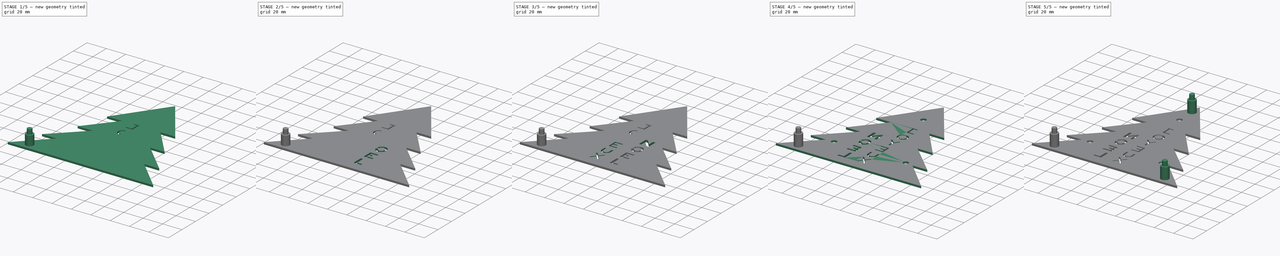
[diagram: build sequence overview — one tinted view per stage of 5, left to right]
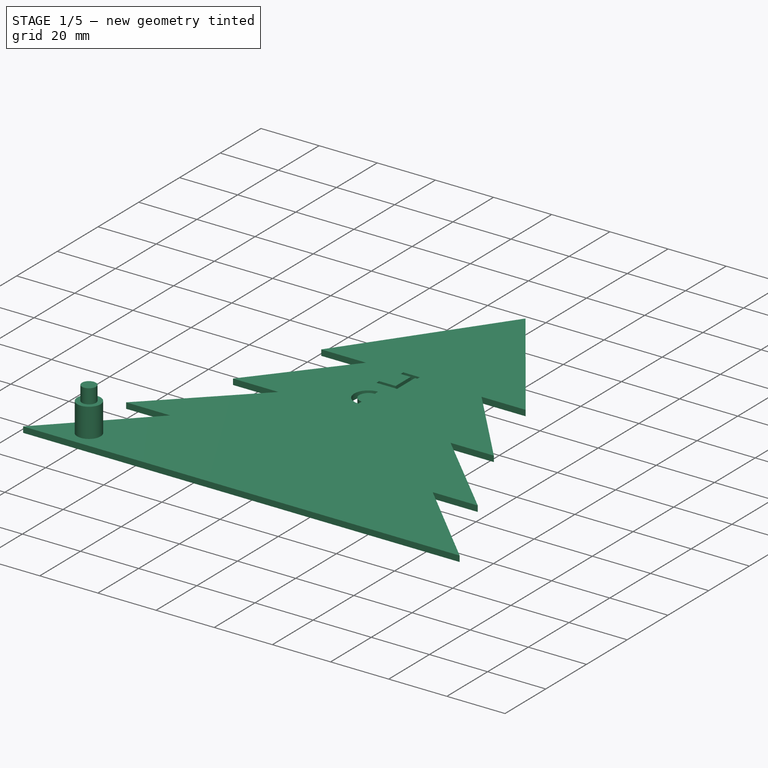
[diagram: stage 1 of 5 — iso view after this stage's code; geometry added in this stage tinted green]
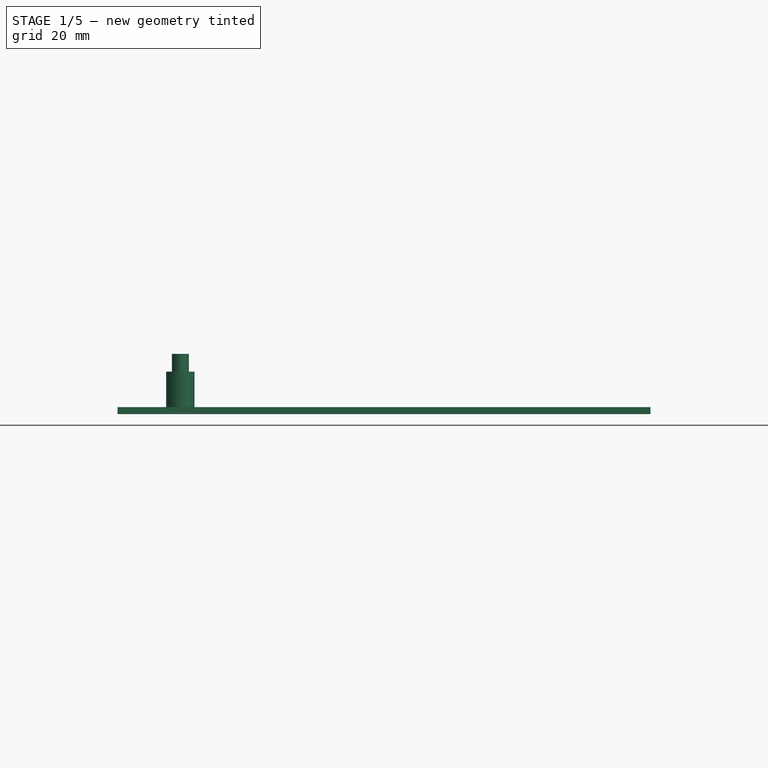
[diagram: stage 1 of 5 — front view after this stage's code; geometry added in this stage tinted green]
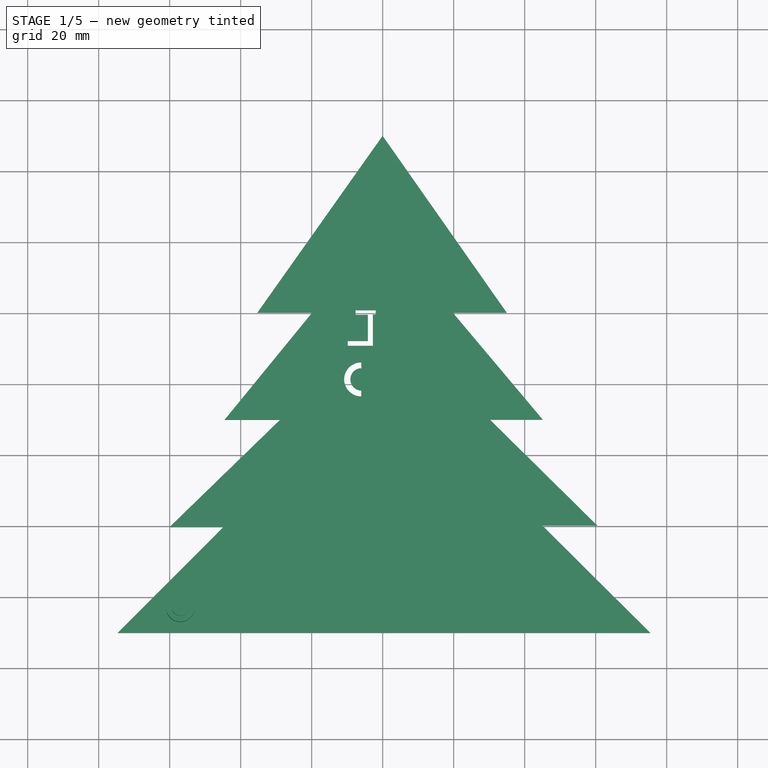
[diagram: stage 1 of 5 — top view after this stage's code; geometry added in this stage tinted green]
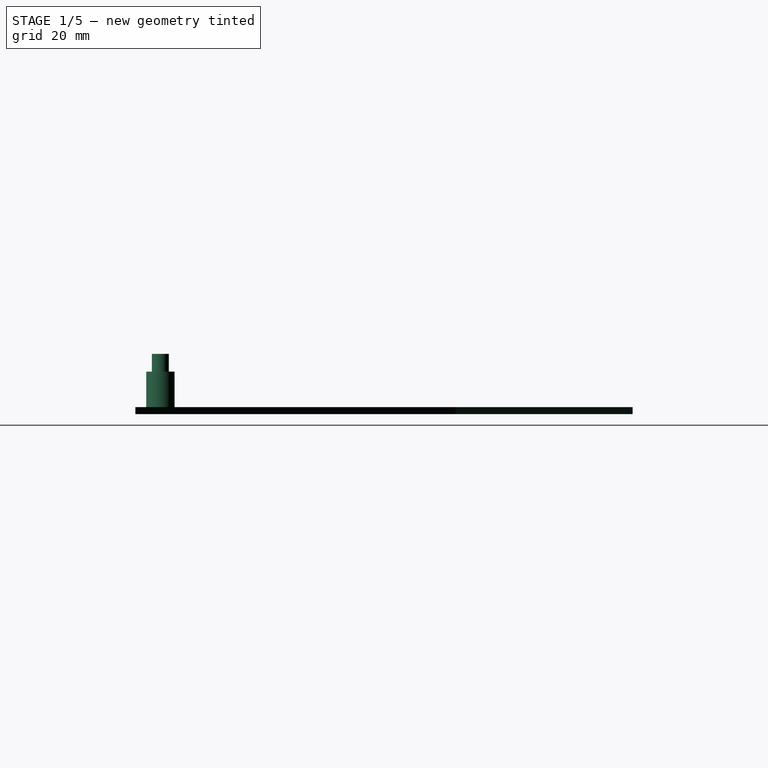
[diagram: stage 1 of 5 — right view after this stage's code; geometry added in this stage tinted green]
FCSTD DOCUMENT  (FreeCAD 0.14R3702 (Git))
Label: piece2I
License: CC-BY 3.0
LicenseURL: http://creativecommons.org/licenses/by/3.0/
objects: Part::Cut×15, Sketcher::SketchObject×13, PartDesign::Pad×13, Part::Cylinder×9, Part::MultiFuse×6
note: 69 computed .brp shape members not serialized (recipe doc carries the construction recipe); baked Part::Feature solids carry a one-line shape summary decoded from their .brp

FEATURE [Sketcher::SketchObject] Sketch
  Placement = pos=(0,0,0) rot=(0,0,1;1.5708rad)
  sketch-geometry (15):
    g0: LineSegment StartX=-130.056 StartY=74.7009 StartZ=0 EndX=-130.056 EndY=-75.4347 EndZ=0
    g1: LineSegment StartX=-130.056 StartY=74.7009 StartZ=0 EndX=-100.276 EndY=44.9717 EndZ=0
    g2: LineSegment StartX=-100.276 StartY=44.9717 StartZ=0 EndX=-100.276 EndY=60.1205 EndZ=0
    g3: LineSegment StartX=-100.276 StartY=60.1205 StartZ=0 EndX=-70.0023 EndY=28.9324 EndZ=0
    g4: LineSegment StartX=-70.0023 StartY=28.9324 StartZ=0 EndX=-70.0023 EndY=44.5611 EndZ=0
    g5: LineSegment StartX=-70.0023 StartY=44.5611 StartZ=0 EndX=-39.8387 EndY=19.9088 EndZ=0
    g6: LineSegment StartX=-39.8387 StartY=19.9088 StartZ=0 EndX=-39.8387 EndY=35.3276 EndZ=0
    g7: LineSegment StartX=-39.8387 StartY=35.3276 StartZ=0 EndX=10.0301 EndY=0.023063 EndZ=0
    g8: LineSegment StartX=10.0301 StartY=0.023063 StartZ=0 EndX=-39.827 EndY=-34.9526 EndZ=0
    g9: LineSegment StartX=-39.827 StartY=-34.9526 StartZ=0 EndX=-39.827 EndY=-19.7763 EndZ=0
    g10: LineSegment StartX=-39.827 StartY=-19.7763 StartZ=0 EndX=-69.9605 EndY=-45.1065 EndZ=0
    g11: LineSegment StartX=-69.9605 StartY=-45.1065 StartZ=0 EndX=-69.9605 EndY=-30.2151 EndZ=0
    g12: LineSegment StartX=-69.9605 StartY=-30.2151 StartZ=0 EndX=-99.7937 EndY=-60.4773 EndZ=0
    g13: LineSegment StartX=-99.7937 StartY=-60.4773 StartZ=0 EndX=-99.7937 EndY=-44.9716 EndZ=0
    g14: LineSegment StartX=-99.7937 StartY=-44.9716 StartZ=0 EndX=-130.056 EndY=-75.4347 EndZ=0
  constraints (22):
    c: Vertical(g0)
    c: Coincident(g1,g0)
    c: Coincident(g1,g2)
    c: Vertical(g2)
    c: Coincident(g2,g3)
    c: Coincident(g3,g4)
    c: Vertical(g4)
    c: Coincident(g4,g5)
    c: Coincident(g5,g6)
    c: Vertical(g6)
    c: Coincident(g6,g7)
    c: Coincident(g7,g8)
    c: Coincident(g8,g9)
    c: Vertical(g9)
    c: Coincident(g9,g10)
    c: Coincident(g10,g11)
    c: Vertical(g11)
    c: Coincident(g11,g12)
    c: Coincident(g12,g13)
    c: Vertical(g13)
    c: Coincident(g13,g14)
    c: Coincident(g14,g0)
FEATURE [PartDesign::Pad] Pad
  Length = 2
  Length2 = 100
  Placement = pos=(0,0,0) rot=(0,0,1;1.5708rad)
  Sketch = -> Sketch
  Type = 0
FEATURE [Sketcher::SketchObject] Sketch001  label="J"
  Placement = pos=(24,-79,0) rot=(0,0,1;0rad)
  sketch-geometry (11):
    g0: LineSegment StartX=-31.0118 StartY=39.8764 StartZ=0 EndX=-25.9439 EndY=39.8764 EndZ=0
    g1: LineSegment StartX=-25.9439 StartY=39.8764 StartZ=0 EndX=-25.9439 EndY=38.6614 EndZ=0
    g2: LineSegment StartX=-25.9439 StartY=38.6614 StartZ=0 EndX=-26.7628 EndY=38.6785 EndZ=0
    g3: LineSegment StartX=-26.7628 StartY=38.6785 StartZ=0 EndX=-26.7628 EndY=29.8655 EndZ=0
    g4: LineSegment StartX=-26.7628 StartY=29.8655 StartZ=0 EndX=-33.8462 EndY=29.8655 EndZ=0
    g5: LineSegment StartX=-33.8462 StartY=29.8655 StartZ=0 EndX=-33.8462 EndY=31.2126 EndZ=0
    g6: LineSegment StartX=-33.8462 StartY=31.2126 StartZ=0 EndX=-28.1891 EndY=31.2126 EndZ=0
    g7: LineSegment StartX=-28.1891 StartY=31.2126 StartZ=0 EndX=-28.1891 EndY=38.6043 EndZ=0
    g8: LineSegment StartX=-28.1891 StartY=38.6043 StartZ=0 EndX=-31.6186 EndY=38.6043 EndZ=0
    g9: LineSegment StartX=-31.6186 StartY=38.6043 StartZ=0 EndX=-31.6186 EndY=39.9285 EndZ=0
    g10: LineSegment StartX=-31.6186 StartY=39.9285 StartZ=0 EndX=-31.0118 EndY=39.8764 EndZ=0
  constraints (17):
    c: Horizontal(g0)
    c: Coincident(g0,g1)
    c: Coincident(g1,g2)
    c: Coincident(g2,g3)
    c: Vertical(g3)
    c: Coincident(g3,g4)
    c: Horizontal(g4)
    c: Coincident(g4,g5)
    c: Coincident(g5,g6)
    c: Horizontal(g6)
    c: Coincident(g6,g7)
    c: Vertical(g7)
    c: Coincident(g7,g8)
    c: Coincident(g8,g9)
    c: Vertical(g9)
    c: Coincident(g9,g10)
    c: Coincident(g10,g0)
FEATURE [PartDesign::Pad] Pad001
  Length = 2
  Length2 = 100
  Placement = pos=(24,-79,0) rot=(0,0,1;0rad)
  Sketch = -> Sketch001
  Type = 0
FEATURE [Sketcher::SketchObject] Sketch002  label="O Gauche"
  Placement = pos=(23,-75,0) rot=(0,0,1;0rad)
  sketch-geometry (4):
    g0: ArcOfCircle CenterX=-29.0572 CenterY=16.4108 CenterZ=0 NormalX=0 NormalY=0 NormalZ=1 Radius=4.79793 StartAngle=1.57271 EndAngle=4.71373
    g1: ArcOfCircle CenterX=-28.9665 CenterY=16.4154 CenterZ=0 NormalX=0 NormalY=0 NormalZ=1 Radius=3.14357 StartAngle=1.57376 EndAngle=4.6887
    g2: LineSegment StartX=-29.0664 StartY=21.2087 StartZ=0 EndX=-28.9758 EndY=19.559 EndZ=0
    g3: LineSegment StartX=-29.041 StartY=13.2727 StartZ=0 EndX=-29.0507 EndY=11.6128 EndZ=0
  constraints (4):
    c: Coincident(g2,g0)
    c: Coincident(g2,g1)
    c: Coincident(g3,g1)
    c: Coincident(g3,g0)
FEATURE [PartDesign::Pad] Pad004
  Length = 2
  Length2 = 100
  Placement = pos=(23,-75,0) rot=(0,0,1;0rad)
  Sketch = -> Sketch002
  Type = 0
FEATURE [Part::Cut] Cut001
  Base = -> Pad
  Tool = -> Pad004
FEATURE [Part::Cut] Cut
  Base = -> Cut001
  Tool = -> Pad001
FEATURE [Part::Cylinder] Cylinder002  label="LedD"
  Angle = 360
  Height = 2
  Placement = pos=(37,-99,0) rot=(0,0,1;0rad)
  Radius = 2.67
FEATURE [Part::Cylinder] Cylinder003  label="Cylindre003"
  Angle = 360
  Height = 12
  Radius = 4
FEATURE [Part::Cylinder] Cylinder008  label="Cylindre008"
  Angle = 360
  Height = 7
  Placement = pos=(0,0,10) rot=(0,0,1;0rad)
  Radius = 2.4
FEATURE [Part::MultiFuse] Fusion  label="FixGauche"
  Placement = pos=(-57,-123,0) rot=(0,0,1;0rad)
  Shapes = -> [Cylinder008,Cylinder003]
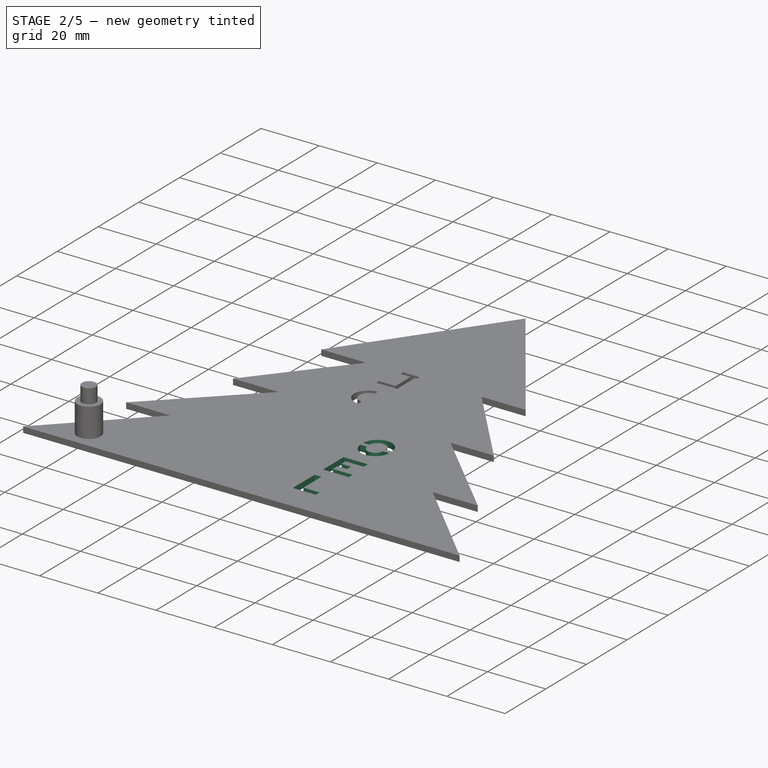
[diagram: stage 2 of 5 — iso view after this stage's code; geometry added in this stage tinted green]
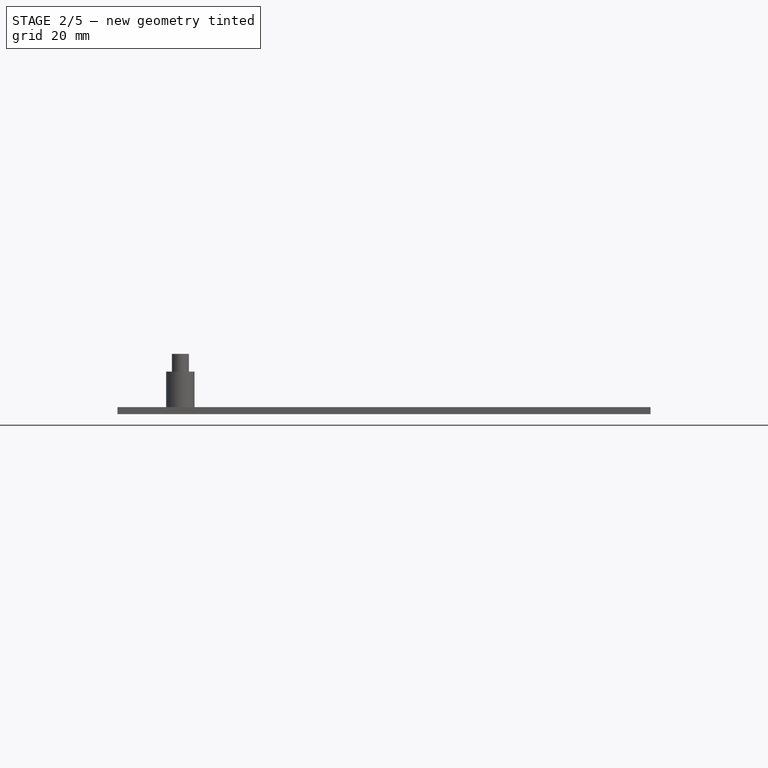
[diagram: stage 2 of 5 — front view after this stage's code; geometry added in this stage tinted green]
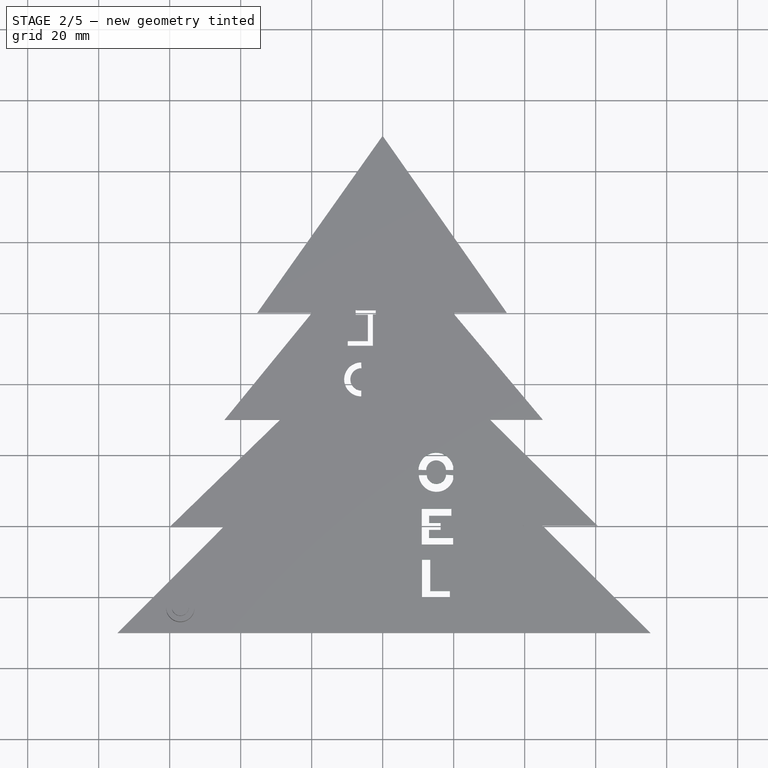
[diagram: stage 2 of 5 — top view after this stage's code; geometry added in this stage tinted green]
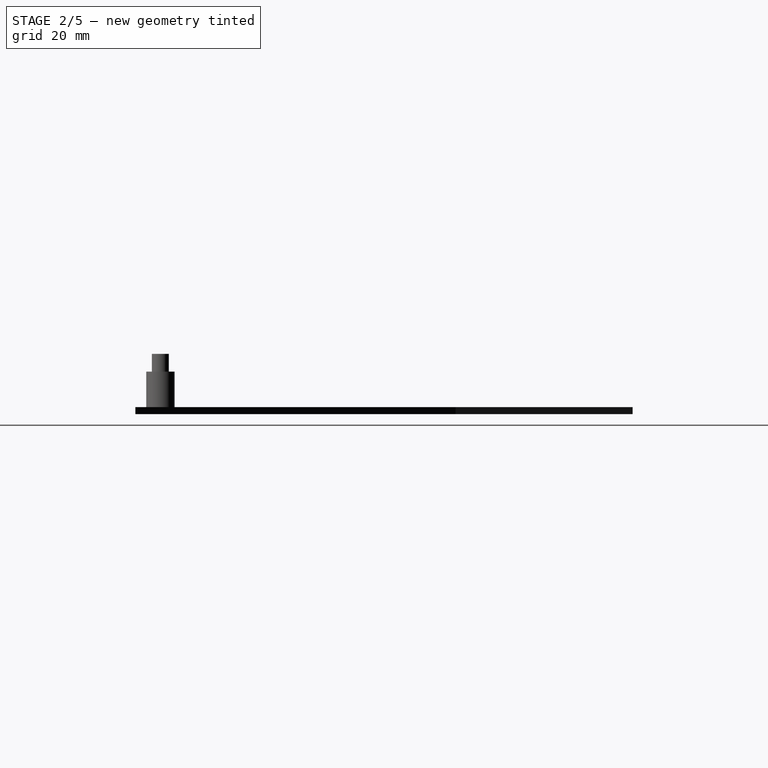
[diagram: stage 2 of 5 — right view after this stage's code; geometry added in this stage tinted green]
FEATURE [Sketcher::SketchObject] Sketch009  label="Ohaut"
  Placement = pos=(-50,-49,0) rot=(0,0,1;0rad)
  sketch-geometry (4):
    g0: ArcOfCircle CenterX=65.0355 CenterY=-35.2037 CenterZ=0 NormalX=0 NormalY=0 NormalZ=1 Radius=4.95588 StartAngle=0.0132282 EndAngle=3.11585
    g1: ArcOfCircle CenterX=65.0355 CenterY=-35.2037 CenterZ=0 NormalX=0 NormalY=0 NormalZ=1 Radius=2.7853 StartAngle=0.029977 EndAngle=3.12437
    g2: LineSegment StartX=60.0813 StartY=-35.0761 StartZ=0 EndX=62.2507 EndY=-35.1557 EndZ=0
    g3: LineSegment StartX=67.8196 StartY=-35.1202 StartZ=0 EndX=69.991 EndY=-35.1382 EndZ=0
  constraints (5):
    c: Coincident(g1,g0)
    c: Coincident(g2,g0)
    c: Coincident(g2,g1)
    c: Coincident(g3,g1)
    c: Coincident(g3,g0)
FEATURE [PartDesign::Pad] Pad011
  Length = 2
  Length2 = 100
  Placement = pos=(-50,-49,0) rot=(0,0,1;0rad)
  Sketch = -> Sketch009
  Type = 0
FEATURE [Sketcher::SketchObject] Sketch010  label="O bas"
  Placement = pos=(-50,-50,0) rot=(0,0,1;0rad)
  sketch-geometry (4):
    g0: ArcOfCircle CenterX=65.1262 CenterY=-35.3138 CenterZ=0 NormalX=0 NormalY=0 NormalZ=1 Radius=4.96317 StartAngle=3.1879 EndAngle=6.23396
    g1: ArcOfCircle CenterX=65.1262 CenterY=-35.3138 CenterZ=0 NormalX=0 NormalY=0 NormalZ=1 Radius=2.72051 StartAngle=3.22615 EndAngle=6.24179
    g2: LineSegment StartX=60.1684 StartY=-35.5436 StartZ=0 EndX=62.4154 EndY=-35.5436 EndZ=0
    g3: LineSegment StartX=67.8444 StartY=-35.4264 StartZ=0 EndX=70.0834 EndY=-35.558 EndZ=0
  constraints (6):
    c: Coincident(g1,g0)
    c: Coincident(g2,g0)
    c: Coincident(g2,g1)
    c: Horizontal(g2)
    c: Coincident(g3,g1)
    c: Coincident(g3,g0)
FEATURE [PartDesign::Pad] Pad013
  Length = 2
  Length2 = 100
  Placement = pos=(-50,-50,0) rot=(0,0,1;0rad)
  Sketch = -> Sketch010
  Type = 0
FEATURE [Sketcher::SketchObject] Sketch011  label="E001"
  Placement = pos=(-49,-45,0) rot=(0,0,1;0rad)
  sketch-geometry (12):
    g0: LineSegment StartX=60.0049 StartY=-50.0404 StartZ=0 EndX=60.0049 EndY=-60.1268 EndZ=0
    g1: LineSegment StartX=60.0049 StartY=-60.1268 StartZ=0 EndX=68.8543 EndY=-60.1268 EndZ=0
    g2: LineSegment StartX=68.8543 StartY=-60.1268 StartZ=0 EndX=68.8543 EndY=-58.2393 EndZ=0
    g3: LineSegment StartX=68.8543 StartY=-58.2393 StartZ=0 EndX=62.037 EndY=-58.2393 EndZ=0
    g4: LineSegment StartX=62.037 StartY=-58.2393 StartZ=0 EndX=62.037 EndY=-55.9898 EndZ=0
    g5: LineSegment StartX=62.037 StartY=-55.9898 StartZ=0 EndX=65.3207 EndY=-55.9898 EndZ=0
    g6: LineSegment StartX=65.3207 StartY=-55.9898 StartZ=0 EndX=65.3207 EndY=-54.0421 EndZ=0
    g7: LineSegment StartX=65.3207 StartY=-54.0421 StartZ=0 EndX=62.0781 EndY=-54.0421 EndZ=0
    g8: LineSegment StartX=62.0781 StartY=-54.0421 StartZ=0 EndX=62.0781 EndY=-52.0099 EndZ=0
    g9: LineSegment StartX=62.0781 StartY=-52.0099 StartZ=0 EndX=68.357 EndY=-52.0099 EndZ=0
    g10: LineSegment StartX=68.357 StartY=-52.0099 StartZ=0 EndX=68.357 EndY=-50.0404 EndZ=0
    g11: LineSegment StartX=68.357 StartY=-50.0404 StartZ=0 EndX=60.0049 EndY=-50.0404 EndZ=0
  constraints (24):
    c: Vertical(g0)
    c: Coincident(g0,g1)
    c: Horizontal(g1)
    c: Coincident(g1,g2)
    c: Vertical(g2)
    c: Coincident(g2,g3)
    c: Horizontal(g3)
    c: Coincident(g3,g4)
    c: Vertical(g4)
    c: Coincident(g4,g5)
    c: Horizontal(g5)
    c: Coincident(g5,g6)
    c: Vertical(g6)
    c: Coincident(g6,g7)
    c: Horizontal(g7)
    c: Coincident(g7,g8)
    c: Vertical(g8)
    c: Coincident(g8,g9)
    c: Horizontal(g9)
    c: Coincident(g9,g10)
    c: Vertical(g10)
    c: Coincident(g10,g11)
    c: Coincident(g11,g0)
    c: Horizontal(g11)
FEATURE [PartDesign::Pad] Pad014
  Length = 2
  Length2 = 100
  Placement = pos=(-49,-45,0) rot=(0,0,1;0rad)
  Sketch = -> Sketch011
  Type = 0
FEATURE [Sketcher::SketchObject] Sketch012  label="L"
  Placement = pos=(-59,-10,0) rot=(0,0,1;0rad)
  sketch-geometry (6):
    g0: LineSegment StartX=70.0775 StartY=-99.3822 StartZ=0 EndX=70.0775 EndY=-110.073 EndZ=0
    g1: LineSegment StartX=70.0775 StartY=-110.073 StartZ=0 EndX=77.9275 EndY=-110.073 EndZ=0
    g2: LineSegment StartX=77.9275 StartY=-110.073 StartZ=0 EndX=77.9275 EndY=-108.204 EndZ=0
    g3: LineSegment StartX=77.9275 StartY=-108.204 StartZ=0 EndX=72.3951 EndY=-108.204 EndZ=0
    g4: LineSegment StartX=72.3951 StartY=-108.204 StartZ=0 EndX=72.3951 EndY=-99.3822 EndZ=0
    g5: LineSegment StartX=72.3951 StartY=-99.3822 StartZ=0 EndX=70.0775 EndY=-99.3822 EndZ=0
  constraints (12):
    c: Vertical(g0)
    c: Coincident(g0,g1)
    c: Horizontal(g1)
    c: Coincident(g1,g2)
    c: Vertical(g2)
    c: Coincident(g2,g3)
    c: Horizontal(g3)
    c: Coincident(g3,g4)
    c: Vertical(g4)
    c: Coincident(g4,g5)
    c: Coincident(g5,g0)
    c: Horizontal(g5)
FEATURE [PartDesign::Pad] Pad015
  Length = 2
  Length2 = 100
  Placement = pos=(-59,-10,0) rot=(0,0,1;0rad)
  Sketch = -> Sketch012
  Type = 0
FEATURE [Part::Cut] Cut002
  Base = -> Cut
  Tool = -> Pad015
FEATURE [Part::Cut] Cut003
  Base = -> Cut002
  Tool = -> Pad014
FEATURE [Part::Cut] Cut004
  Base = -> Cut003
  Tool = -> Pad013
FEATURE [Part::Cut] Cut005
  Base = -> Cut004
  Tool = -> Pad011
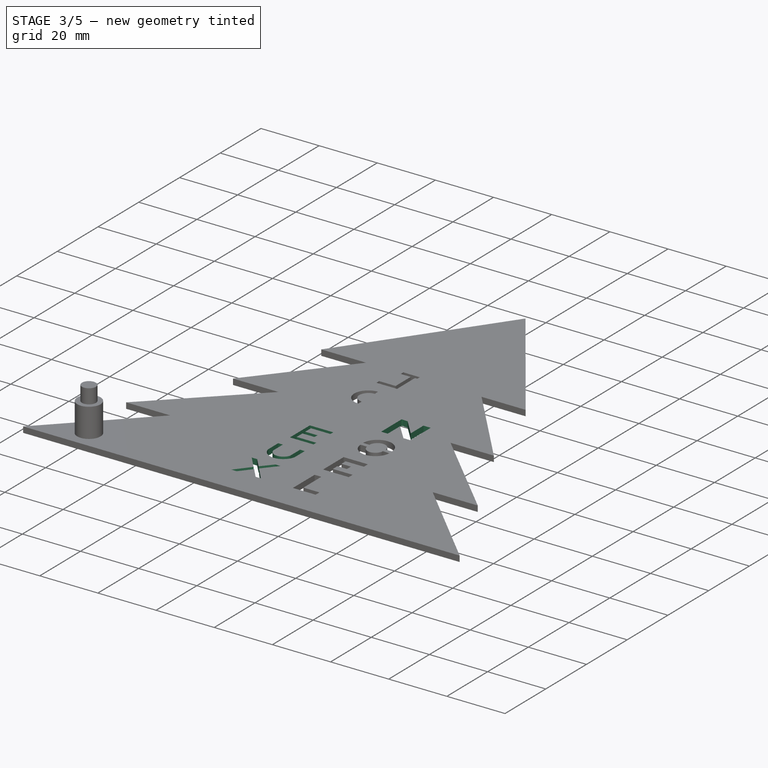
[diagram: stage 3 of 5 — iso view after this stage's code; geometry added in this stage tinted green]
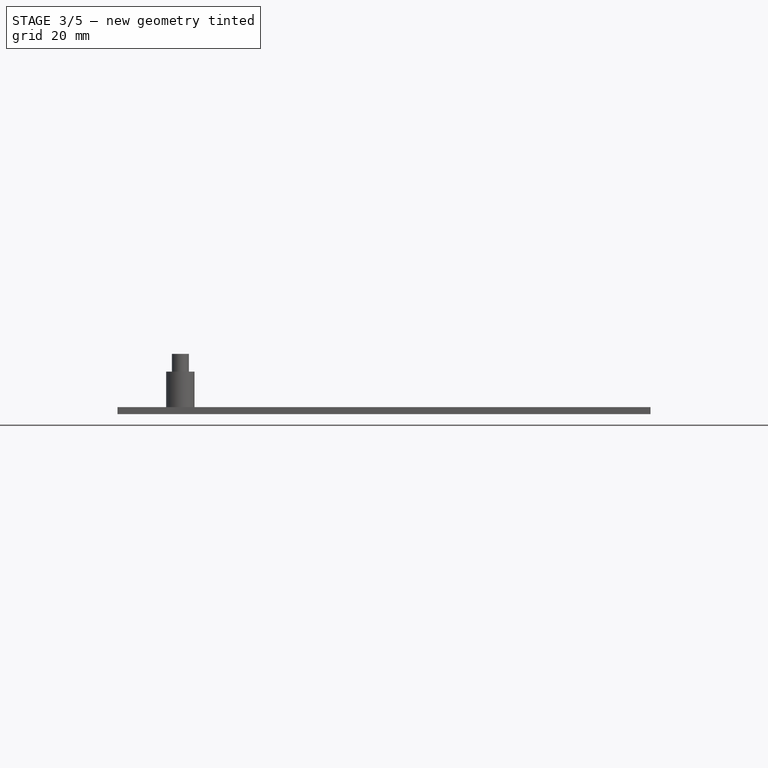
[diagram: stage 3 of 5 — front view after this stage's code; geometry added in this stage tinted green]
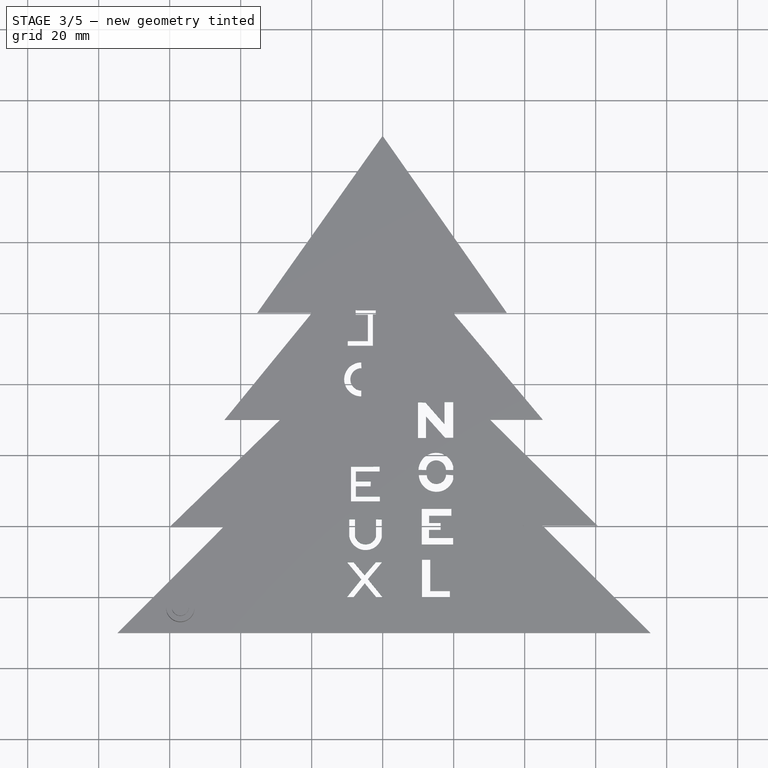
[diagram: stage 3 of 5 — top view after this stage's code; geometry added in this stage tinted green]
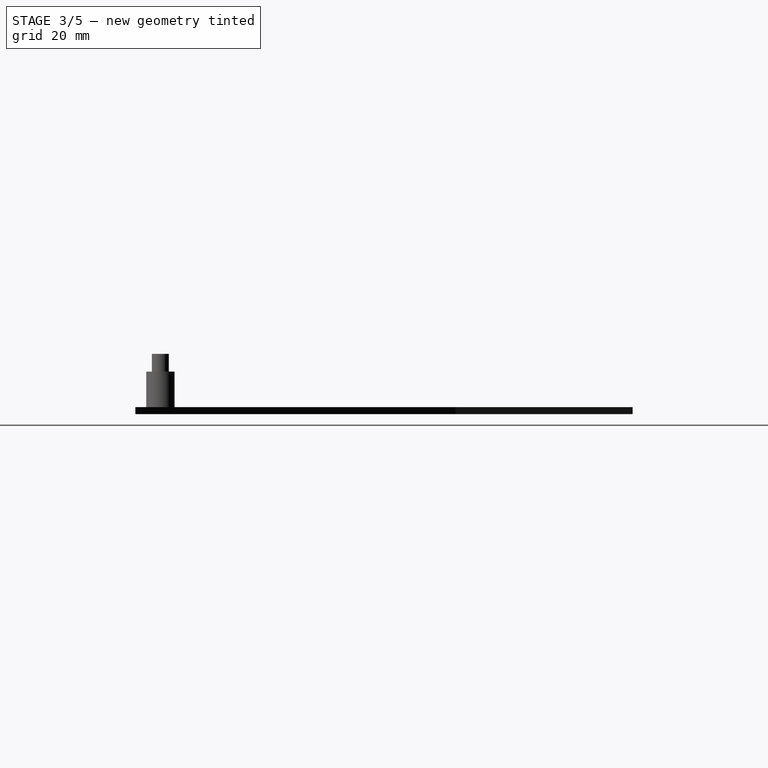
[diagram: stage 3 of 5 — right view after this stage's code; geometry added in this stage tinted green]
FEATURE [Sketcher::SketchObject] Sketch004  label="Y"
  Placement = pos=(50,-28,0) rot=(0,0,1;0rad)
  sketch-geometry (9):
    g0: LineSegment StartX=-60.1723 StartY=-40.0149 StartZ=0 EndX=-55.9452 EndY=-45.2342 EndZ=0
    g1: LineSegment StartX=-55.9452 StartY=-45.2342 StartZ=0 EndX=-55.9452 EndY=-50.0652 EndZ=0
    g2: LineSegment StartX=-55.9452 StartY=-50.0652 StartZ=0 EndX=-54.3923 EndY=-50.0652 EndZ=0
    g3: LineSegment StartX=-54.3923 StartY=-50.0652 StartZ=0 EndX=-54.3923 EndY=-45.2342 EndZ=0
    g4: LineSegment StartX=-54.3923 StartY=-45.2342 StartZ=0 EndX=-50.0358 EndY=-40.0581 EndZ=0
    g5: LineSegment StartX=-50.0358 StartY=-40.0581 StartZ=0 EndX=-51.8043 EndY=-40.0149 EndZ=0
    g6: LineSegment StartX=-51.8043 StartY=-40.0149 StartZ=0 EndX=-55.2119 EndY=-43.7676 EndZ=0
    g7: LineSegment StartX=-55.2119 StartY=-43.7676 StartZ=0 EndX=-58.3607 EndY=-40.0149 EndZ=0
    g8: LineSegment StartX=-58.3607 StartY=-40.0149 StartZ=0 EndX=-60.1723 EndY=-40.0149 EndZ=0
  constraints (12):
    c: Coincident(g0,g1)
    c: Vertical(g1)
    c: Coincident(g1,g2)
    c: Horizontal(g2)
    c: Coincident(g2,g3)
    c: Vertical(g3)
    c: Coincident(g3,g4)
    c: Coincident(g4,g5)
    c: Coincident(g5,g6)
    c: Coincident(g6,g7)
    c: Coincident(g7,g8)
    c: Coincident(g8,g0)
FEATURE [PartDesign::Pad] Pad006
  Length = 2
  Length2 = 100
  Placement = pos=(50,-28,0) rot=(0,0,1;0rad)
  Sketch = -> Sketch004
  Type = 0
FEATURE [Sketcher::SketchObject] Sketch005  label="E"
  Placement = pos=(51,-113,0) rot=(0,0,1;0rad)
  sketch-geometry (12):
    g0: LineSegment StartX=-59.9245 StartY=29.8274 StartZ=0 EndX=-59.9245 EndY=20.0431 EndZ=0
    g1: LineSegment StartX=-59.9245 StartY=20.0431 StartZ=0 EndX=-51.7994 EndY=20.0431 EndZ=0
    g2: LineSegment StartX=-51.7994 StartY=20.0431 StartZ=0 EndX=-51.7781 EndY=21.3882 EndZ=0
    g3: LineSegment StartX=-51.7781 StartY=21.3882 StartZ=0 EndX=-58.5393 EndY=21.3882 EndZ=0
    g4: LineSegment StartX=-58.5393 StartY=21.3882 StartZ=0 EndX=-58.5393 EndY=24.2418 EndZ=0
    g5: LineSegment StartX=-58.5393 StartY=24.2418 StartZ=0 EndX=-54.3922 EndY=24.2418 EndZ=0
    g6: LineSegment StartX=-54.3922 StartY=24.2418 StartZ=0 EndX=-54.3687 EndY=25.6487 EndZ=0
    g7: LineSegment StartX=-54.3687 StartY=25.6487 StartZ=0 EndX=-58.5639 EndY=25.6487 EndZ=0
    g8: LineSegment StartX=-58.5639 StartY=25.6487 StartZ=0 EndX=-58.5639 EndY=28.4448 EndZ=0
    g9: LineSegment StartX=-58.5639 StartY=28.4448 StartZ=0 EndX=-51.8719 EndY=28.4448 EndZ=0
    g10: LineSegment StartX=-51.8719 StartY=28.4448 StartZ=0 EndX=-51.8719 EndY=29.8423 EndZ=0
    g11: LineSegment StartX=-51.8719 StartY=29.8423 StartZ=0 EndX=-59.9245 EndY=29.8274 EndZ=0
  constraints (20):
    c: Vertical(g0)
    c: Coincident(g0,g1)
    c: Horizontal(g1)
    c: Coincident(g1,g2)
    c: Coincident(g2,g3)
    c: Horizontal(g3)
    c: Coincident(g3,g4)
    c: Vertical(g4)
    c: Coincident(g4,g5)
    c: Horizontal(g5)
    c: Coincident(g5,g6)
    c: Coincident(g6,g7)
    c: Coincident(g7,g8)
    c: Vertical(g8)
    c: Coincident(g8,g9)
    c: Horizontal(g9)
    c: Coincident(g9,g10)
    c: Vertical(g10)
    c: Coincident(g10,g11)
    c: Coincident(g11,g0)
FEATURE [PartDesign::Pad] Pad007
  Length = 2
  Length2 = 100
  Placement = pos=(51,-113,0) rot=(0,0,1;0rad)
  Sketch = -> Sketch005
  Type = 0
FEATURE [Sketcher::SketchObject] Sketch006  label="U"
  Placement = pos=(40,-88,0) rot=(0,0,1;0rad)
  sketch-geometry (8):
    g0: ArcOfCircle CenterX=-44.8133 CenterY=-14.0117 CenterZ=0 NormalX=0 NormalY=0 NormalZ=1 Radius=4.67356 StartAngle=3.32783 EndAngle=6.05146
    g1: ArcOfCircle CenterX=-44.8133 CenterY=-14.0117 CenterZ=0 NormalX=0 NormalY=0 NormalZ=1 Radius=3.06212 StartAngle=3.36434 EndAngle=5.99512
    g2: LineSegment StartX=-41.8774 StartY=-14.8817 StartZ=0 EndX=-41.8774 EndY=-10.0146 EndZ=0
    g3: LineSegment StartX=-41.8774 StartY=-10.0146 StartZ=0 EndX=-40.2647 EndY=-10.0394 EndZ=0
    g4: LineSegment StartX=-40.2647 StartY=-10.0394 StartZ=0 EndX=-40.2647 EndY=-15.085 EndZ=0
    g5: LineSegment StartX=-49.406 StartY=-14.8771 StartZ=0 EndX=-49.406 EndY=-10.0146 EndZ=0
    g6: LineSegment StartX=-49.406 StartY=-10.0146 StartZ=0 EndX=-47.7998 EndY=-10.0146 EndZ=0
    g7: LineSegment StartX=-47.7998 StartY=-10.0146 StartZ=0 EndX=-47.7998 EndY=-14.6882 EndZ=0
  constraints (14):
    c: Coincident(g1,g0)
    c: Coincident(g2,g1)
    c: Vertical(g2)
    c: Coincident(g2,g3)
    c: Coincident(g3,g4)
    c: Coincident(g4,g0)
    c: Vertical(g4)
    c: Coincident(g5,g0)
    c: Vertical(g5)
    c: Coincident(g5,g6)
    c: Horizontal(g6)
    c: Coincident(g6,g7)
    c: Coincident(g7,g1)
    c: Vertical(g7)
FEATURE [PartDesign::Pad] Pad008
  Length = 2
  Length2 = 100
  Placement = pos=(40,-88,0) rot=(0,0,1;0rad)
  Sketch = -> Sketch006
  Type = 0
FEATURE [Sketcher::SketchObject] Sketch007  label="X"
  Placement = pos=(40,-100,0) rot=(0,0,1;0rad)
  sketch-geometry (12):
    g0: LineSegment StartX=-50.0444 StartY=-10.1112 StartZ=0 EndX=-48.1842 EndY=-10.1112 EndZ=0
    g1: LineSegment StartX=-48.1842 StartY=-10.1112 StartZ=0 EndX=-45.1038 EndY=-13.7691 EndZ=0
    g2: LineSegment StartX=-45.1038 StartY=-13.7691 StartZ=0 EndX=-41.9134 EndY=-10.0837 EndZ=0
    g3: LineSegment StartX=-41.9134 StartY=-10.0837 StartZ=0 EndX=-40.1452 EndY=-10.0837 EndZ=0
    g4: LineSegment StartX=-40.1452 StartY=-10.0837 StartZ=0 EndX=-44.1687 EndY=-14.8693 EndZ=0
    g5: LineSegment StartX=-44.1687 StartY=-14.8693 StartZ=0 EndX=-39.9891 EndY=-20.0125 EndZ=0
    g6: LineSegment StartX=-39.9891 StartY=-20.0125 StartZ=0 EndX=-41.7759 EndY=-20.0125 EndZ=0
    g7: LineSegment StartX=-41.7759 StartY=-20.0125 StartZ=0 EndX=-45.0488 EndY=-16.0519 EndZ=0
    g8: LineSegment StartX=-45.0488 StartY=-16.0519 StartZ=0 EndX=-48.2667 EndY=-20.0125 EndZ=0
    g9: LineSegment StartX=-48.2667 StartY=-20.0125 StartZ=0 EndX=-50.137 EndY=-20.0125 EndZ=0
    g10: LineSegment StartX=-50.137 StartY=-20.0125 StartZ=0 EndX=-46.0389 EndY=-14.9243 EndZ=0
    g11: LineSegment StartX=-46.0389 StartY=-14.9243 StartZ=0 EndX=-50.0444 EndY=-10.1112 EndZ=0
  constraints (16):
    c: Horizontal(g0)
    c: Coincident(g0,g1)
    c: Coincident(g1,g2)
    c: Coincident(g2,g3)
    c: Horizontal(g3)
    c: Coincident(g3,g4)
    c: Coincident(g4,g5)
    c: Coincident(g5,g6)
    c: Horizontal(g6)
    c: Coincident(g6,g7)
    c: Coincident(g7,g8)
    c: Coincident(g8,g9)
    c: Horizontal(g9)
    c: Coincident(g9,g10)
    c: Coincident(g10,g11)
    c: Coincident(g11,g0)
FEATURE [PartDesign::Pad] Pad009
  Length = 2
  Length2 = 100
  Placement = pos=(40,-100,0) rot=(0,0,1;0rad)
  Sketch = -> Sketch007
  Type = 0
FEATURE [Sketcher::SketchObject] Sketch008  label="N"
  Placement = pos=(-50,-55,0) rot=(0,0,1;0rad)
  sketch-geometry (11):
    g0: LineSegment StartX=59.945 StartY=-10.0817 StartZ=0 EndX=59.945 EndY=-20.0964 EndZ=0
    g1: LineSegment StartX=59.945 StartY=-20.0964 StartZ=0 EndX=62.2158 EndY=-20.0964 EndZ=0
    g2: LineSegment StartX=62.2158 StartY=-20.0964 StartZ=0 EndX=62.2158 EndY=-14.041 EndZ=0
    g3: LineSegment StartX=62.2158 StartY=-14.041 StartZ=0 EndX=67.5725 EndY=-20.0382 EndZ=0
    g4: LineSegment StartX=67.5725 StartY=-20.0382 StartZ=0 EndX=69.9015 EndY=-20.0382 EndZ=0
    g5: LineSegment StartX=69.9015 StartY=-20.0382 StartZ=0 EndX=69.9015 EndY=-9.96525 EndZ=0
    g6: LineSegment StartX=69.9015 StartY=-9.96525 StartZ=0 EndX=67.3978 EndY=-9.96525 EndZ=0
    g7: LineSegment StartX=67.3978 StartY=-9.96525 StartZ=0 EndX=67.3978 EndY=-16.1953 EndZ=0
    g8: LineSegment StartX=67.3978 StartY=-16.1953 StartZ=0 EndX=62.0993 EndY=-10.1399 EndZ=0
    g9: LineSegment StartX=62.0993 StartY=-10.1399 StartZ=0 EndX=60.2943 EndY=-10.0235 EndZ=0
    g10: LineSegment StartX=60.2943 StartY=-10.0235 StartZ=0 EndX=59.945 EndY=-10.0817 EndZ=0
  constraints (18):
    c: Vertical(g0)
    c: Coincident(g0,g1)
    c: Horizontal(g1)
    c: Coincident(g1,g2)
    c: Vertical(g2)
    c: Coincident(g2,g3)
    c: Coincident(g3,g4)
    c: Horizontal(g4)
    c: Coincident(g4,g5)
    c: Vertical(g5)
    c: Coincident(g5,g6)
    c: Horizontal(g6)
    c: Coincident(g6,g7)
    c: Vertical(g7)
    c: Coincident(g7,g8)
    c: Coincident(g8,g9)
    c: Coincident(g9,g10)
    c: Coincident(g10,g0)
FEATURE [PartDesign::Pad] Pad010
  Length = 2
  Length2 = 100
  Placement = pos=(-50,-55,0) rot=(0,0,1;0rad)
  Sketch = -> Sketch008
  Type = 0
FEATURE [Part::Cut] Cut006
  Base = -> Cut005
  Tool = -> Pad010
FEATURE [Part::Cut] Cut007
  Base = -> Cut006
  Tool = -> Pad009
FEATURE [Part::Cut] Cut008
  Base = -> Cut007
  Tool = -> Pad008
FEATURE [Part::Cut] Cut009
  Base = -> Cut008
  Tool = -> Pad007
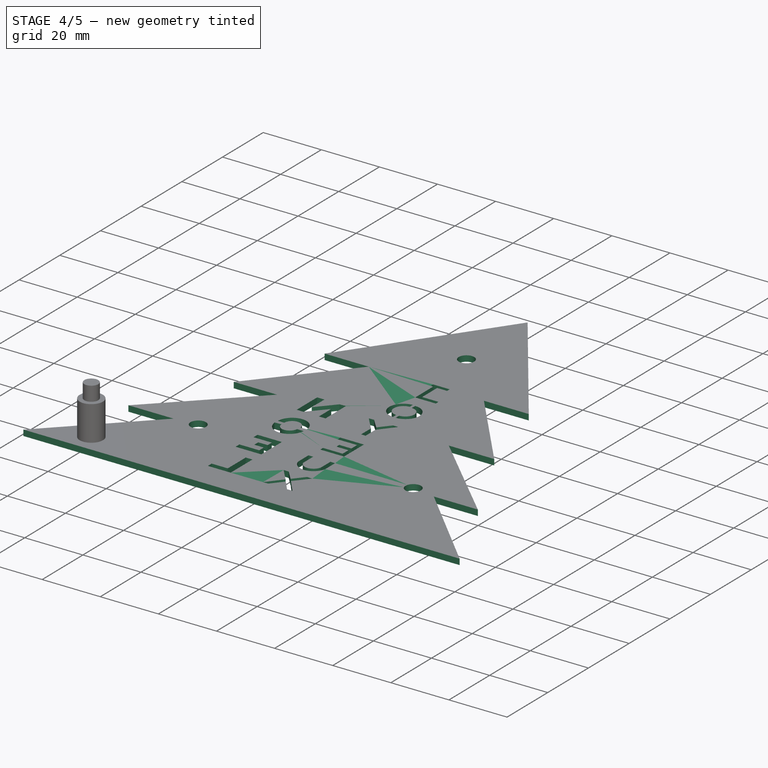
[diagram: stage 4 of 5 — iso view after this stage's code; geometry added in this stage tinted green]
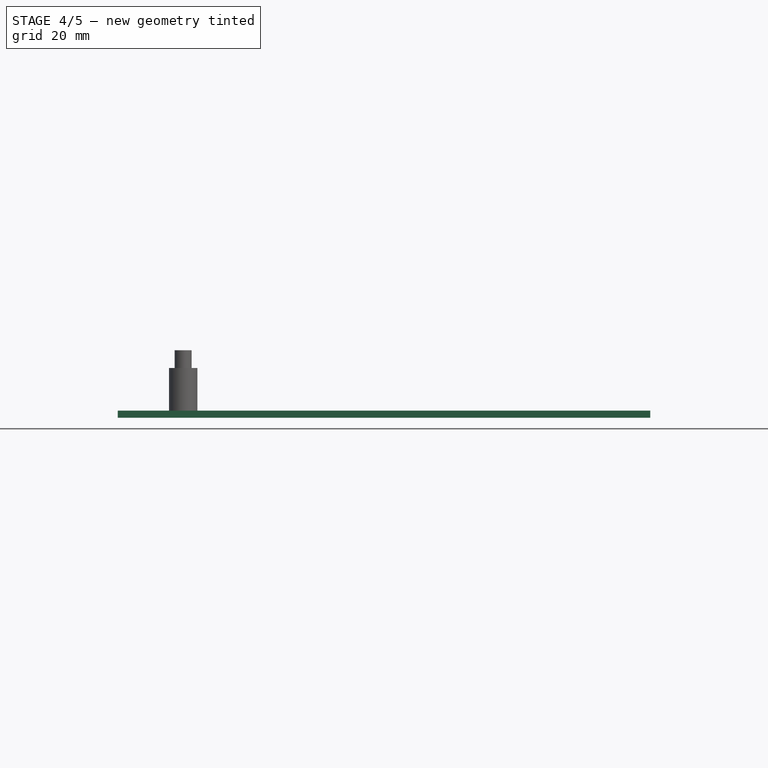
[diagram: stage 4 of 5 — front view after this stage's code; geometry added in this stage tinted green]
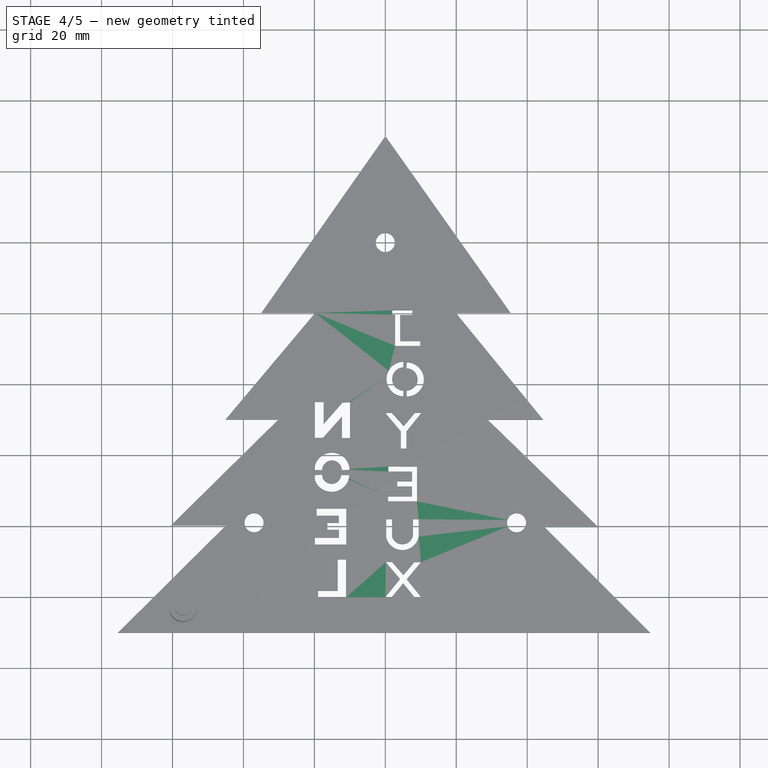
[diagram: stage 4 of 5 — top view after this stage's code; geometry added in this stage tinted green]
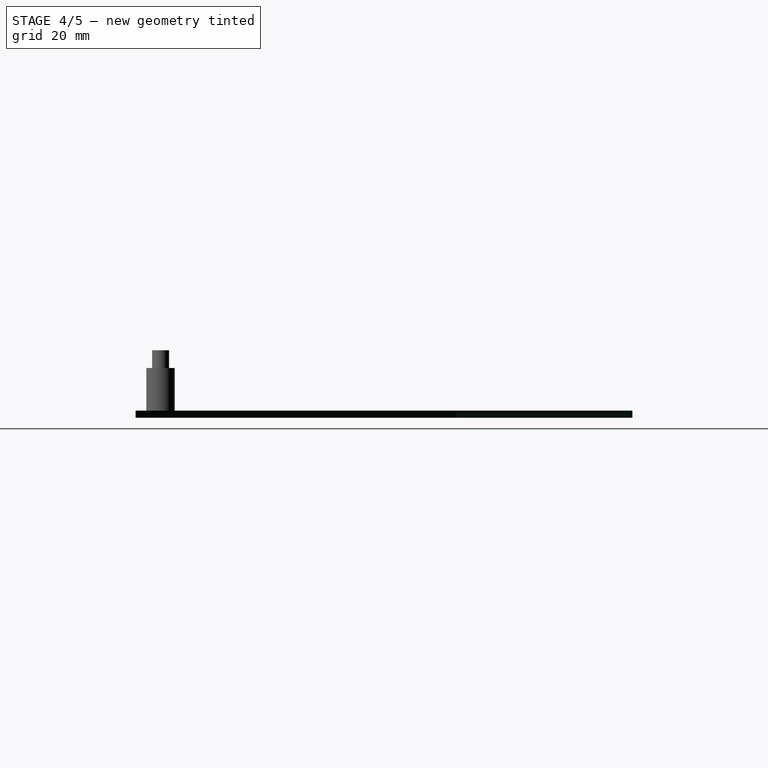
[diagram: stage 4 of 5 — right view after this stage's code; geometry added in this stage tinted green]
FEATURE [Sketcher::SketchObject] Sketch003  label="Odroit"
  Placement = pos=(11,-73,0) rot=(0,0,1;0rad)
  sketch-geometry (4):
    g0: ArcOfCircle CenterX=-16.2479 CenterY=14.5322 CenterZ=0 NormalX=0 NormalY=0 NormalZ=1 Radius=4.88342 StartAngle=4.75538 EndAngle=7.81781
    g1: ArcOfCircle CenterX=-16.2479 CenterY=14.5322 CenterZ=0 NormalX=0 NormalY=0 NormalZ=1 Radius=3.32174 StartAngle=4.75715 EndAngle=7.80079
    g2: LineSegment StartX=-16.0713 StartY=19.4125 StartZ=0 EndX=-16.0713 EndY=17.8493 EndZ=0
    g3: LineSegment StartX=-16.0992 StartY=11.2138 StartZ=0 EndX=-16.038 EndY=9.65334 EndZ=0
  constraints (6):
    c: Coincident(g1,g0)
    c: Coincident(g2,g0)
    c: Coincident(g2,g1)
    c: Vertical(g2)
    c: Coincident(g3,g1)
    c: Coincident(g3,g0)
FEATURE [PartDesign::Pad] Pad005
  Length = 2
  Length2 = 100
  Placement = pos=(11,-73,0) rot=(0,0,1;0rad)
  Sketch = -> Sketch003
  Type = 0
FEATURE [Part::Cut] Cut010
  Base = -> Cut009
  Tool = -> Pad006
FEATURE [Part::Cut] Cut011
  Base = -> Cut010
  Tool = -> Pad005
FEATURE [Part::Cylinder] Cylinder  label="LedH"
  Angle = 360
  Height = 2
  Placement = pos=(0,-20,0) rot=(0,0,1;0rad)
  Radius = 2.67
FEATURE [Part::Cylinder] Cylinder001  label="ledG"
  Angle = 360
  Height = 2
  Placement = pos=(-37,-99,0) rot=(0,0,1;0rad)
  Radius = 2.67
FEATURE [Part::Cut] Cut012
  Base = -> Cut011
  Tool = -> Cylinder002
FEATURE [Part::Cut] Cut013
  Base = -> Cut012
  Tool = -> Cylinder001
FEATURE [Part::Cut] Cut014
  Base = -> Cut013
  Placement = pos=(0,0,0) rot=(0,1,0;3.14159rad)
  Tool = -> Cylinder
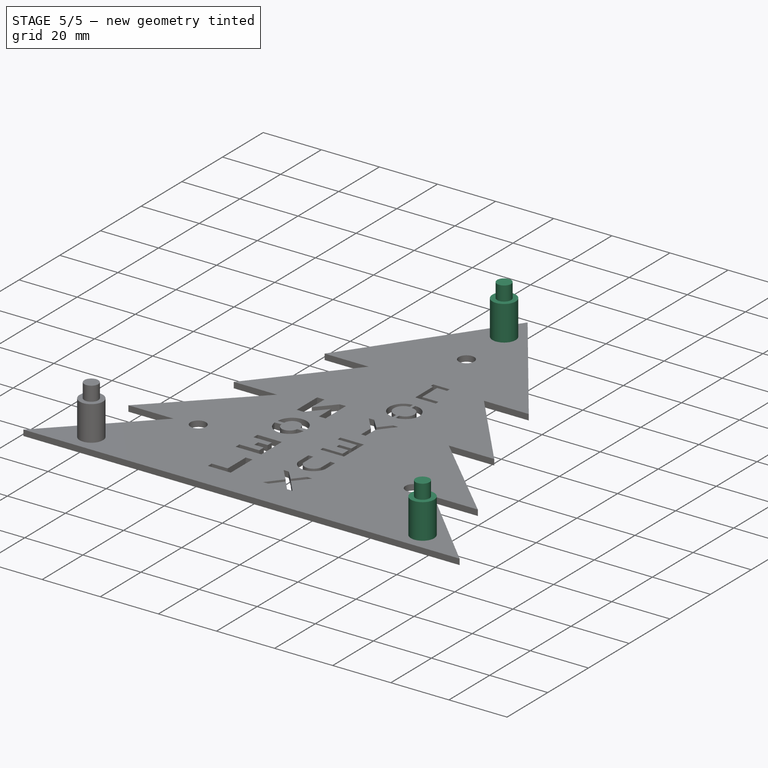
[diagram: stage 5 of 5 — iso view after this stage's code; geometry added in this stage tinted green]
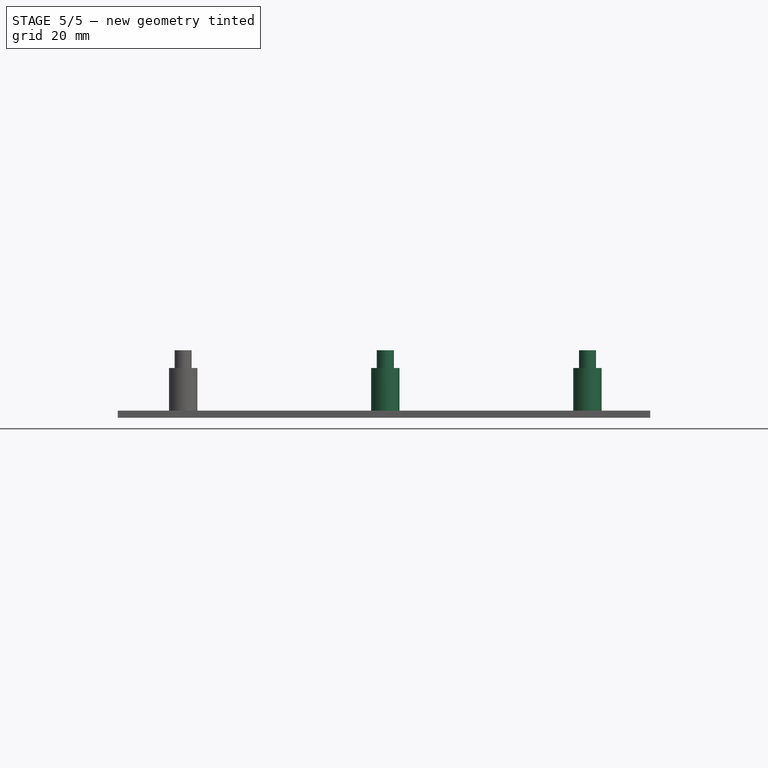
[diagram: stage 5 of 5 — front view after this stage's code; geometry added in this stage tinted green]
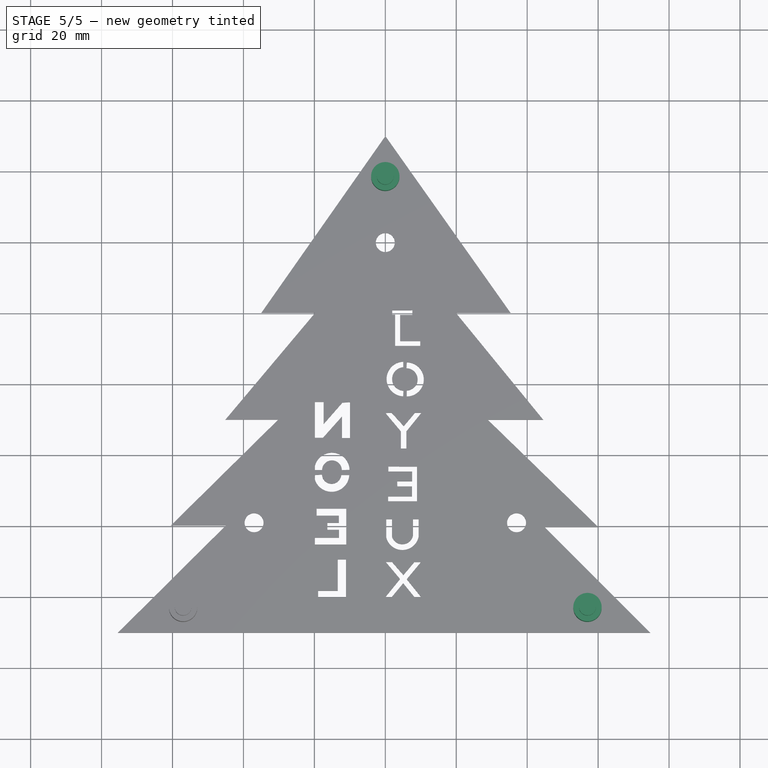
[diagram: stage 5 of 5 — top view after this stage's code; geometry added in this stage tinted green]
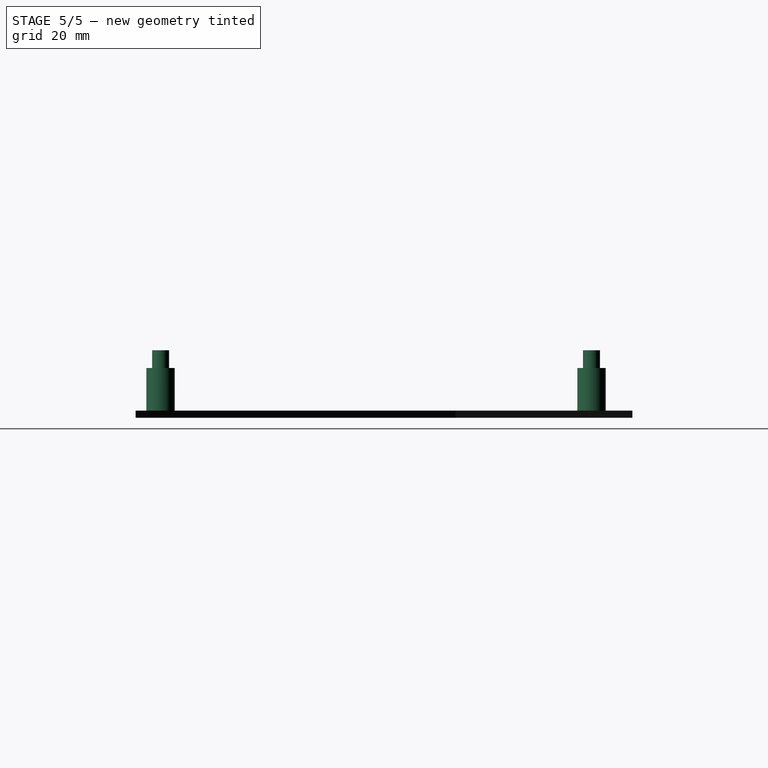
[diagram: stage 5 of 5 — right view after this stage's code; geometry added in this stage tinted green]
FEATURE [Part::Cylinder] Cylinder004  label="Cylindre004"
  Angle = 360
  Height = 12
  Radius = 4
FEATURE [Part::Cylinder] Cylinder005  label="Cylindre005"
  Angle = 360
  Height = 12
  Radius = 4
FEATURE [Part::Cylinder] Cylinder006  label="Cylindre006"
  Angle = 360
  Height = 7
  Placement = pos=(0,0,10) rot=(0,0,1;0rad)
  Radius = 2.4
FEATURE [Part::Cylinder] Cylinder007  label="Cylindre007"
  Angle = 360
  Height = 7
  Placement = pos=(0,0,10) rot=(0,0,1;0rad)
  Radius = 2.4
FEATURE [Part::MultiFuse] Fusion001  label="FixDroite"
  Placement = pos=(57,-123,0) rot=(0,0,1;0rad)
  Shapes = -> [Cylinder004,Cylinder006]
FEATURE [Part::MultiFuse] Fusion002  label="FixHaut"
  Placement = pos=(0,-1.5,0) rot=(0,0,1;0rad)
  Shapes = -> [Cylinder005,Cylinder007]
FEATURE [Part::MultiFuse] Fusion003
  Shapes = -> [Fusion,Cut014]
FEATURE [Part::MultiFuse] Fusion004
  Shapes = -> [Fusion003,Fusion002]
FEATURE [Part::MultiFuse] Fusion005
  Shapes = -> [Fusion004,Fusion001]
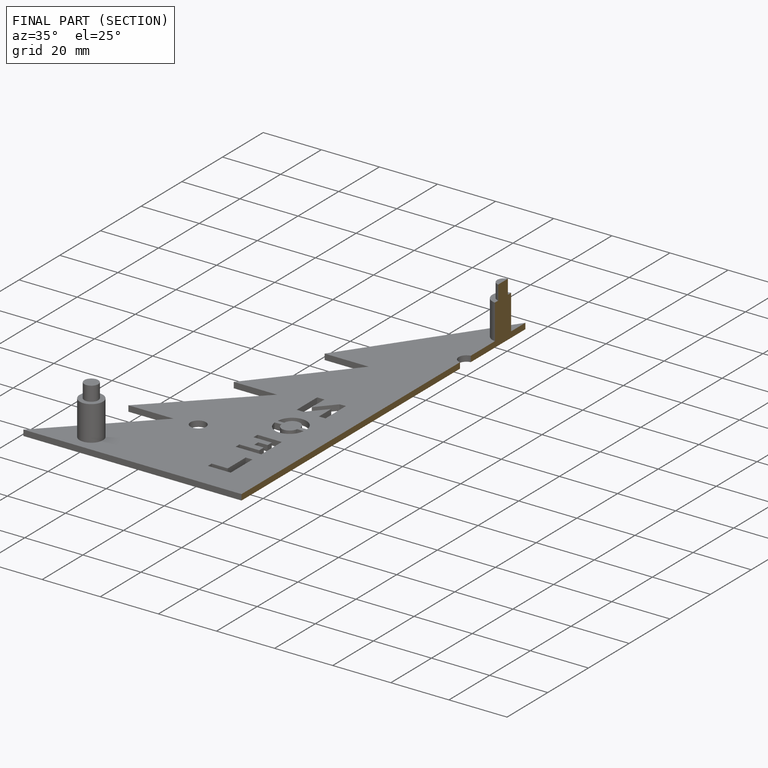
[diagram: finished part — half-section view (interior)]
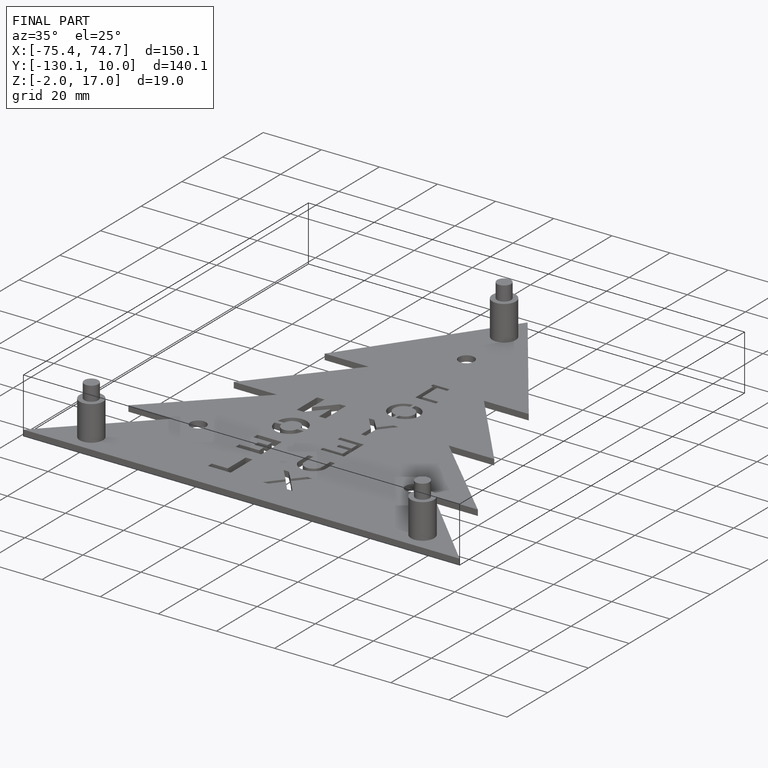
[diagram: finished part — iso view with bounding-box wireframe]
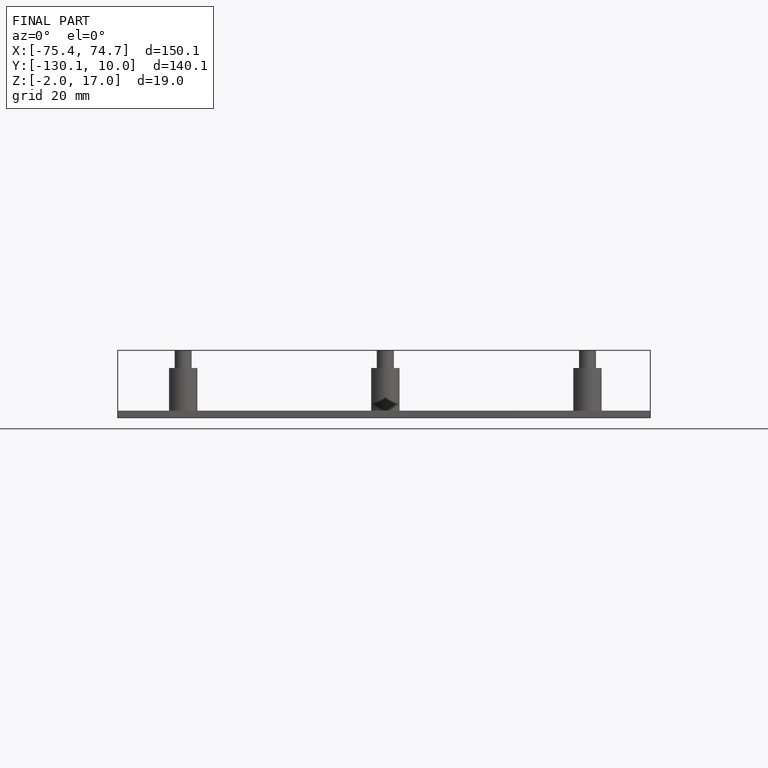
[diagram: finished part — front view with bounding-box wireframe]
